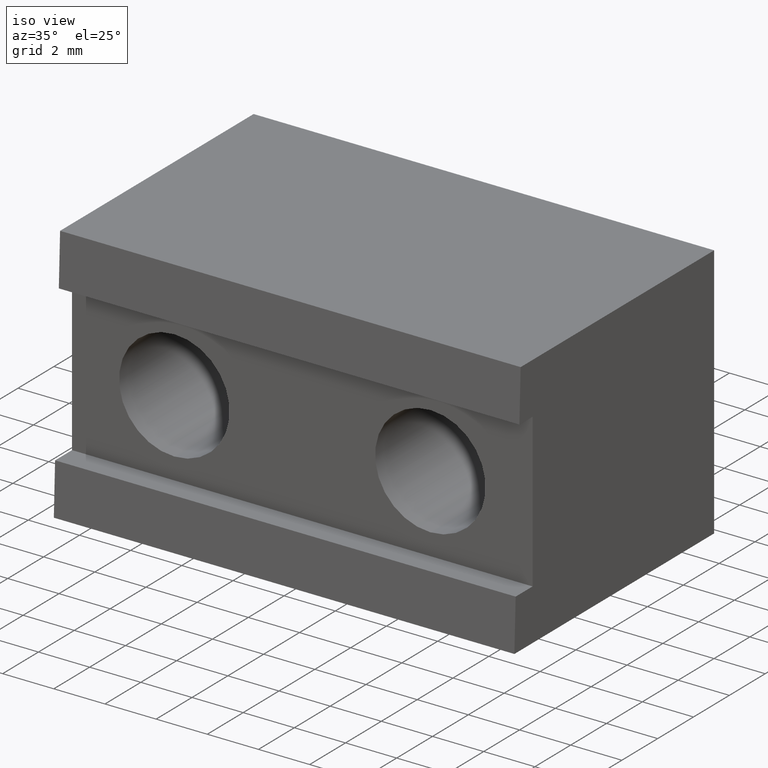
[diagram: clean part render]
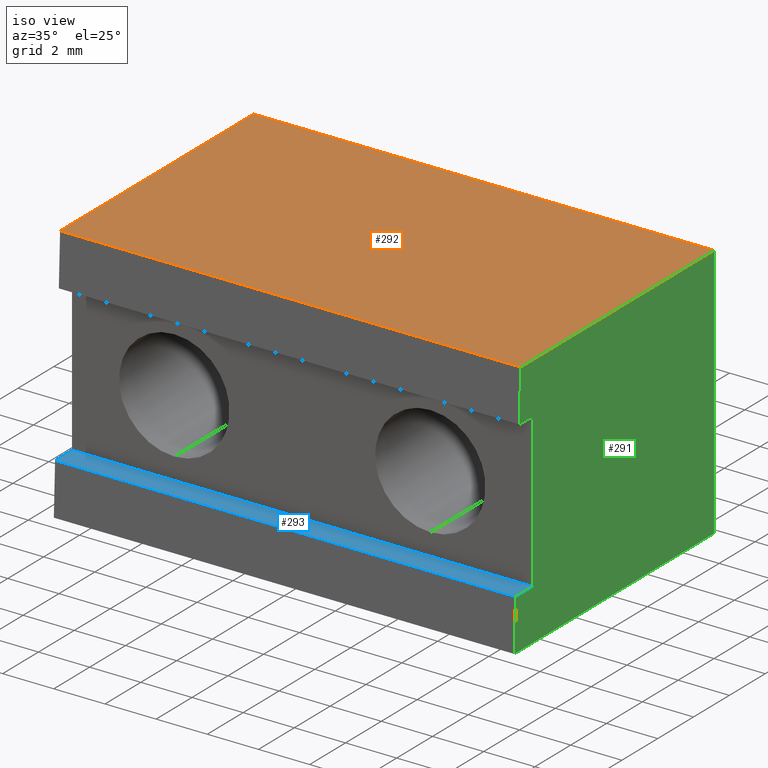
[diagram: same view with three faces highlighted in distinct colors, each labeled with its STEP entity id]
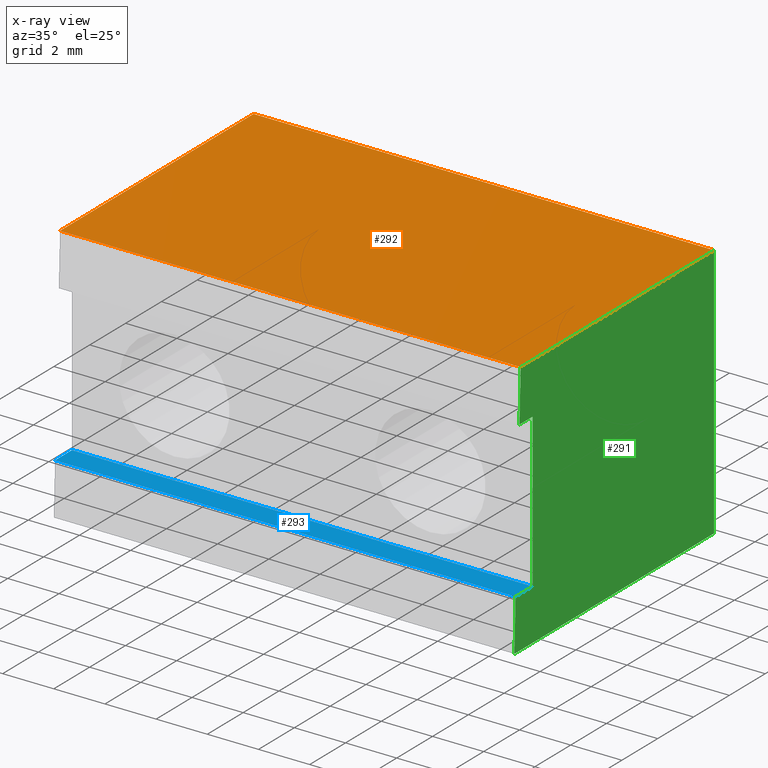
[diagram: x-ray of the same camera — body ghosted, the three highlighted faces saturated]
A machine part, iso view with three faces highlighted in distinct colors.
The next image is the same camera in x-ray (body ghosted, the three faces saturated) — at least one of them is partly hidden behind the body in this view.
Their STEP definitions:

[orange] entity #292 — the highlighted planar face has unit normal (0, 0, -1).
#16 = ORIENTED_EDGE ( 'NONE', *, *, #148, .T. ) ;
#25 = ORIENTED_EDGE ( 'NONE', *, *, #342, .T. ) ;
#63 = ORIENTED_EDGE ( 'NONE', *, *, #340, .T. ) ;
#68 = ORIENTED_EDGE ( 'NONE', *, *, #152, .T. ) ;
#78 = EDGE_LOOP ( 'NONE', ( #16, #68, #25, #63 ) ) ;
#82 = VECTOR ( 'NONE', #335, 39.37007874015748100 ) ;
#86 = LINE ( 'NONE', #326, #82 ) ;
#95 = LINE ( 'NONE', #324, #102 ) ;
#102 = VECTOR ( 'NONE', #329, 39.37007874015748100 ) ;
#148 = EDGE_CURVE ( 'NONE', #315, #306, #86, .T. ) ;
#152 = EDGE_CURVE ( 'NONE', #306, #316, #95, .T. ) ;
#172 = AXIS2_PLACEMENT_3D ( 'NONE', #431, #432, #439 ) ;
#202 = LINE ( 'NONE', #408, #223 ) ;
#206 = LINE ( 'NONE', #413, #257 ) ;
#223 = VECTOR ( 'NONE', #406, 39.37007874015748100 ) ;
#257 = VECTOR ( 'NONE', #411, 39.37007874015748100 ) ;
#263 = FACE_OUTER_BOUND ( 'NONE', #78, .T. ) ;
#292 = ADVANCED_FACE ( 'NONE', ( #263 ), #475, .F. ) ;
#306 = VERTEX_POINT ( 'NONE', #474 ) ;
#307 = VERTEX_POINT ( 'NONE', #469 ) ;
#315 = VERTEX_POINT ( 'NONE', #428 ) ;
#316 = VERTEX_POINT ( 'NONE', #468 ) ;
#324 = CARTESIAN_POINT ( 'NONE',  ( -0.9156692913385827700, 0.01374833453630595000, 0.0000000000000000000 ) ) ;
#326 = CARTESIAN_POINT ( 'NONE',  ( -0.3543307086614173600, -4.339156371811573700E-017, 0.0000000000000000000 ) ) ;
#329 = DIRECTION ( 'NONE',  ( 1.000000000000000000, 1.555722092063930900E-016, -0.0000000000000000000 ) ) ;
#335 = DIRECTION ( 'NONE',  ( -0.0000000000000000000, -1.000000000000000000, -0.0000000000000000000 ) ) ;
#340 = EDGE_CURVE ( 'NONE', #307, #315, #206, .T. ) ;
#342 = EDGE_CURVE ( 'NONE', #316, #307, #202, .T. ) ;
#406 = DIRECTION ( 'NONE',  ( -1.555722092063931100E-016, 1.000000000000000000, -0.0000000000000000000 ) ) ;
#408 = CARTESIAN_POINT ( 'NONE',  ( 0.3543307086614172500, 0.4390000000000000000, 0.0000000000000000000 ) ) ;
#411 = DIRECTION ( 'NONE',  ( -1.000000000000000000, -0.0000000000000000000, -0.0000000000000000000 ) ) ;
#413 = CARTESIAN_POINT ( 'NONE',  ( -0.3543307086614173600, 0.4390000000000000000, 0.0000000000000000000 ) ) ;
#428 = CARTESIAN_POINT ( 'NONE',  ( -0.3543307086614173600, 0.4390000000000000000, 0.0000000000000000000 ) ) ;
#431 = CARTESIAN_POINT ( 'NONE',  ( -0.3543307086614173600, 2.073152488754191300E-020, 0.0000000000000000000 ) ) ;
#432 = DIRECTION ( 'NONE',  ( 0.0000000000000000000, 0.0000000000000000000, -1.000000000000000000 ) ) ;
#439 = DIRECTION ( 'NONE',  ( -1.000000000000000000, 0.0000000000000000000, -0.0000000000000000000 ) ) ;
#468 = CARTESIAN_POINT ( 'NONE',  ( 0.3543307086614173000, 0.01374833453630615000, 0.0000000000000000000 ) ) ;
#469 = CARTESIAN_POINT ( 'NONE',  ( 0.3543307086614172500, 0.4390000000000000000, 0.0000000000000000000 ) ) ;
#474 = CARTESIAN_POINT ( 'NONE',  ( -0.3543307086614173600, 0.01374833453630603900, 0.0000000000000000000 ) ) ;
#475 = PLANE ( 'NONE',  #172 ) ;

[blue] entity #293 — the highlighted planar face has unit normal (-0, 0, -1).
#24 = EDGE_LOOP ( 'NONE', ( #30, #27, #104, #101 ) ) ;
#27 = ORIENTED_EDGE ( 'NONE', *, *, #345, .T. ) ;
#30 = ORIENTED_EDGE ( 'NONE', *, *, #162, .T. ) ;
#53 = VECTOR ( 'NONE', #363, 39.37007874015748100 ) ;
#60 = LINE ( 'NONE', #520, #79 ) ;
#71 = LINE ( 'NONE', #517, #123 ) ;
#79 = VECTOR ( 'NONE', #519, 39.37007874015748100 ) ;
#80 = LINE ( 'NONE', #353, #53 ) ;
#101 = ORIENTED_EDGE ( 'NONE', *, *, #159, .F. ) ;
#104 = ORIENTED_EDGE ( 'NONE', *, *, #161, .T. ) ;
#123 = VECTOR ( 'NONE', #503, 39.37007874015748100 ) ;
#150 = AXIS2_PLACEMENT_3D ( 'NONE', #440, #368, #375 ) ;
#159 = EDGE_CURVE ( 'NONE', #328, #312, #80, .T. ) ;
#161 = EDGE_CURVE ( 'NONE', #318, #312, #60, .T. ) ;
#162 = EDGE_CURVE ( 'NONE', #328, #336, #71, .T. ) ;
#259 = FACE_OUTER_BOUND ( 'NONE', #24, .T. ) ;
#267 = VECTOR ( 'NONE', #393, 39.37007874015748100 ) ;
#276 = LINE ( 'NONE', #396, #267 ) ;
#293 = ADVANCED_FACE ( 'NONE', ( #259 ), #435, .F. ) ;
#312 = VERTEX_POINT ( 'NONE', #464 ) ;
#318 = VERTEX_POINT ( 'NONE', #473 ) ;
#328 = VERTEX_POINT ( 'NONE', #425 ) ;
#336 = VERTEX_POINT ( 'NONE', #416 ) ;
#345 = EDGE_CURVE ( 'NONE', #336, #318, #276, .T. ) ;
#353 = CARTESIAN_POINT ( 'NONE',  ( -0.7156692913385827000, 0.03999999999999996600, -0.3150000000000000000 ) ) ;
#363 = DIRECTION ( 'NONE',  ( 1.000000000000000000, -0.0000000000000000000, -0.0000000000000000000 ) ) ;
#368 = DIRECTION ( 'NONE',  ( -0.0000000000000000000, 0.0000000000000000000, -1.000000000000000000 ) ) ;
#375 = DIRECTION ( 'NONE',  ( -1.000000000000000000, 0.0000000000000000000, 0.0000000000000000000 ) ) ;
#393 = DIRECTION ( 'NONE',  ( 1.000000000000000000, 1.555722092063931100E-016, 0.0000000000000000000 ) ) ;
#396 = CARTESIAN_POINT ( 'NONE',  ( -0.7156692913385827000, 0.002748292146407716900, -0.3150000000000000000 ) ) ;
#416 = CARTESIAN_POINT ( 'NONE',  ( -0.3543307086614173600, 0.002748292146407772900, -0.3150000000000000000 ) ) ;
#425 = CARTESIAN_POINT ( 'NONE',  ( -0.3543307086614173600, 0.03999999999999996600, -0.3150000000000000000 ) ) ;
#435 = PLANE ( 'NONE',  #150 ) ;
#440 = CARTESIAN_POINT ( 'NONE',  ( -0.7156692913385827000, 0.03999999999999996600, -0.3150000000000000000 ) ) ;
#464 = CARTESIAN_POINT ( 'NONE',  ( 0.3543307086614173000, 0.03999999999999996600, -0.3150000000000000000 ) ) ;
#473 = CARTESIAN_POINT ( 'NONE',  ( 0.3543307086614173000, 0.002748292146407879100, -0.3150000000000000000 ) ) ;
#503 = DIRECTION ( 'NONE',  ( 0.0000000000000000000, -1.000000000000000000, 0.0000000000000000000 ) ) ;
#517 = CARTESIAN_POINT ( 'NONE',  ( -0.3543307086614173600, -4.339156371811573700E-017, -0.3150000000000000000 ) ) ;
#519 = DIRECTION ( 'NONE',  ( -0.0000000000000000000, 1.000000000000000000, -0.0000000000000000000 ) ) ;
#520 = CARTESIAN_POINT ( 'NONE',  ( 0.3543307086614173000, 0.03999999999999996600, -0.3150000000000000000 ) ) ;

[green] entity #291 — the highlighted planar face has unit normal (1, 0, -0).
#13 = ORIENTED_EDGE ( 'NONE', *, *, #342, .F. ) ;
#21 = ORIENTED_EDGE ( 'NONE', *, *, #197, .F. ) ;
#29 = ORIENTED_EDGE ( 'NONE', *, *, #187, .F. ) ;
#32 = VECTOR ( 'NONE', #338, 39.37007874015748100 ) ;
#44 = VECTOR ( 'NONE', #364, 39.37007874015748100 ) ;
#55 = LINE ( 'NONE', #365, #44 ) ;
#60 = LINE ( 'NONE', #520, #79 ) ;
#61 = VECTOR ( 'NONE', #380, 39.37007874015748100 ) ;
#65 = ORIENTED_EDGE ( 'NONE', *, *, #163, .F. ) ;
#75 = LINE ( 'NONE', #308, #32 ) ;
#79 = VECTOR ( 'NONE', #519, 39.37007874015748100 ) ;
#87 = LINE ( 'NONE', #379, #61 ) ;
#90 = ORIENTED_EDGE ( 'NONE', *, *, #134, .F. ) ;
#96 = LINE ( 'NONE', #511, #275 ) ;
#99 = EDGE_LOOP ( 'NONE', ( #90, #119, #118, #13, #29, #65, #21, #111 ) ) ;
#111 = ORIENTED_EDGE ( 'NONE', *, *, #161, .F. ) ;
#118 = ORIENTED_EDGE ( 'NONE', *, *, #160, .T. ) ;
#119 = ORIENTED_EDGE ( 'NONE', *, *, #180, .T. ) ;
#134 = EDGE_CURVE ( 'NONE', #314, #318, #75, .T. ) ;
#138 = AXIS2_PLACEMENT_3D ( 'NONE', #466, #429, #477 ) ;
#160 = EDGE_CURVE ( 'NONE', #313, #307, #55, .T. ) ;
#161 = EDGE_CURVE ( 'NONE', #318, #312, #60, .T. ) ;
#163 = EDGE_CURVE ( 'NONE', #325, #331, #87, .T. ) ;
#180 = EDGE_CURVE ( 'NONE', #314, #313, #96, .T. ) ;
#187 = EDGE_CURVE ( 'NONE', #331, #316, #271, .T. ) ;
#197 = EDGE_CURVE ( 'NONE', #312, #325, #232, .T. ) ;
#202 = LINE ( 'NONE', #408, #223 ) ;
#214 = VECTOR ( 'NONE', #515, 39.37007874015748100 ) ;
#223 = VECTOR ( 'NONE', #406, 39.37007874015748100 ) ;
#232 = LINE ( 'NONE', #410, #255 ) ;
#255 = VECTOR ( 'NONE', #412, 39.37007874015748100 ) ;
#271 = LINE ( 'NONE', #516, #214 ) ;
#275 = VECTOR ( 'NONE', #512, 39.37007874015748100 ) ;
#279 = FACE_OUTER_BOUND ( 'NONE', #99, .T. ) ;
#291 = ADVANCED_FACE ( 'NONE', ( #279 ), #394, .T. ) ;
#307 = VERTEX_POINT ( 'NONE', #469 ) ;
#308 = CARTESIAN_POINT ( 'NONE',  ( 0.3543307086614173000, -2.073152488754191300E-020, -0.3937007900000000200 ) ) ;
#312 = VERTEX_POINT ( 'NONE', #464 ) ;
#313 = VERTEX_POINT ( 'NONE', #465 ) ;
#314 = VERTEX_POINT ( 'NONE', #471 ) ;
#316 = VERTEX_POINT ( 'NONE', #468 ) ;
#318 = VERTEX_POINT ( 'NONE', #473 ) ;
#325 = VERTEX_POINT ( 'NONE', #426 ) ;
#331 = VERTEX_POINT ( 'NONE', #422 ) ;
#338 = DIRECTION ( 'NONE',  ( 0.0000000000000000000, 0.03489949670249379400, 0.9993908270190959800 ) ) ;
#342 = EDGE_CURVE ( 'NONE', #316, #307, #202, .T. ) ;
#364 = DIRECTION ( 'NONE',  ( 0.0000000000000000000, 0.0000000000000000000, 1.000000000000000000 ) ) ;
#365 = CARTESIAN_POINT ( 'NONE',  ( 0.3543307086614172500, 0.4390000000000000000, -0.3937007900000000200 ) ) ;
#379 = CARTESIAN_POINT ( 'NONE',  ( 0.3543307086614173000, 2.404707604070175800E-018, -0.07899999999999995900 ) ) ;
#380 = DIRECTION ( 'NONE',  ( -0.0000000000000000000, -1.000000000000000000, 8.537024980200829700E-016 ) ) ;
#394 = PLANE ( 'NONE',  #138 ) ;
#406 = DIRECTION ( 'NONE',  ( -1.555722092063931100E-016, 1.000000000000000000, -0.0000000000000000000 ) ) ;
#408 = CARTESIAN_POINT ( 'NONE',  ( 0.3543307086614172500, 0.4390000000000000000, 0.0000000000000000000 ) ) ;
#410 = CARTESIAN_POINT ( 'NONE',  ( 0.3543307086614173000, 0.03999999999999996600, -0.07900000000000000100 ) ) ;
#412 = DIRECTION ( 'NONE',  ( -0.0000000000000000000, -0.0000000000000000000, 1.000000000000000000 ) ) ;
#422 = CARTESIAN_POINT ( 'NONE',  ( 0.3543307086614173600, 0.01098959374645864600, -0.07900000000000000100 ) ) ;
#426 = CARTESIAN_POINT ( 'NONE',  ( 0.3543307086614173000, 0.03999999999999996600, -0.07900000000000000100 ) ) ;
#429 = DIRECTION ( 'NONE',  ( 1.000000000000000000, 1.555722092063931100E-016, -0.0000000000000000000 ) ) ;
#464 = CARTESIAN_POINT ( 'NONE',  ( 0.3543307086614173000, 0.03999999999999996600, -0.3150000000000000000 ) ) ;
#465 = CARTESIAN_POINT ( 'NONE',  ( 0.3543307086614172500, 0.4390000000000000000, -0.3937007900000000200 ) ) ;
#466 = CARTESIAN_POINT ( 'NONE',  ( 0.3543307086614172500, 0.4390000000000000000, -0.3937007900000000200 ) ) ;
#468 = CARTESIAN_POINT ( 'NONE',  ( 0.3543307086614173000, 0.01374833453630615000, 0.0000000000000000000 ) ) ;
#469 = CARTESIAN_POINT ( 'NONE',  ( 0.3543307086614172500, 0.4390000000000000000, 0.0000000000000000000 ) ) ;
#471 = CARTESIAN_POINT ( 'NONE',  ( 0.3543307086614173000, -2.073152488754191300E-020, -0.3937007900000000200 ) ) ;
#473 = CARTESIAN_POINT ( 'NONE',  ( 0.3543307086614173000, 0.002748292146407879100, -0.3150000000000000000 ) ) ;
#477 = DIRECTION ( 'NONE',  ( -1.555722092063931100E-016, 1.000000000000000000, 0.0000000000000000000 ) ) ;
#511 = CARTESIAN_POINT ( 'NONE',  ( 0.3543307086614172500, 0.4390000000000000000, -0.3937007900000000200 ) ) ;
#512 = DIRECTION ( 'NONE',  ( -1.555722092063931100E-016, 1.000000000000000000, -0.0000000000000000000 ) ) ;
#515 = DIRECTION ( 'NONE',  ( 0.0000000000000000000, 0.03489949670249379400, 0.9993908270190959800 ) ) ;
#516 = CARTESIAN_POINT ( 'NONE',  ( 0.3543307086614173000, -2.073152488754191300E-020, -0.3937007900000000200 ) ) ;
#519 = DIRECTION ( 'NONE',  ( -0.0000000000000000000, 1.000000000000000000, -0.0000000000000000000 ) ) ;
#520 = CARTESIAN_POINT ( 'NONE',  ( 0.3543307086614173000, 0.03999999999999996600, -0.3150000000000000000 ) ) ;